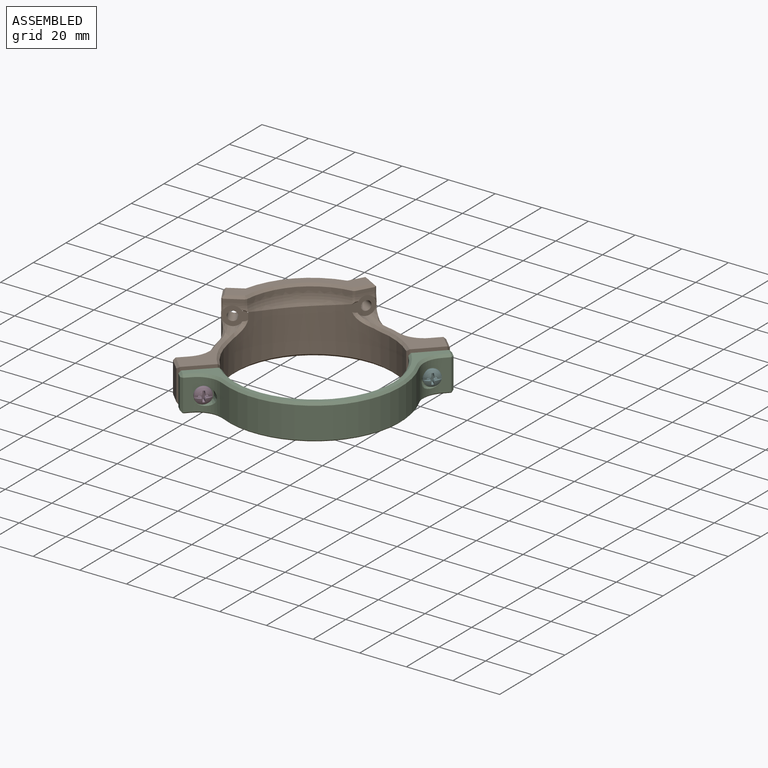
[diagram: assembled view]
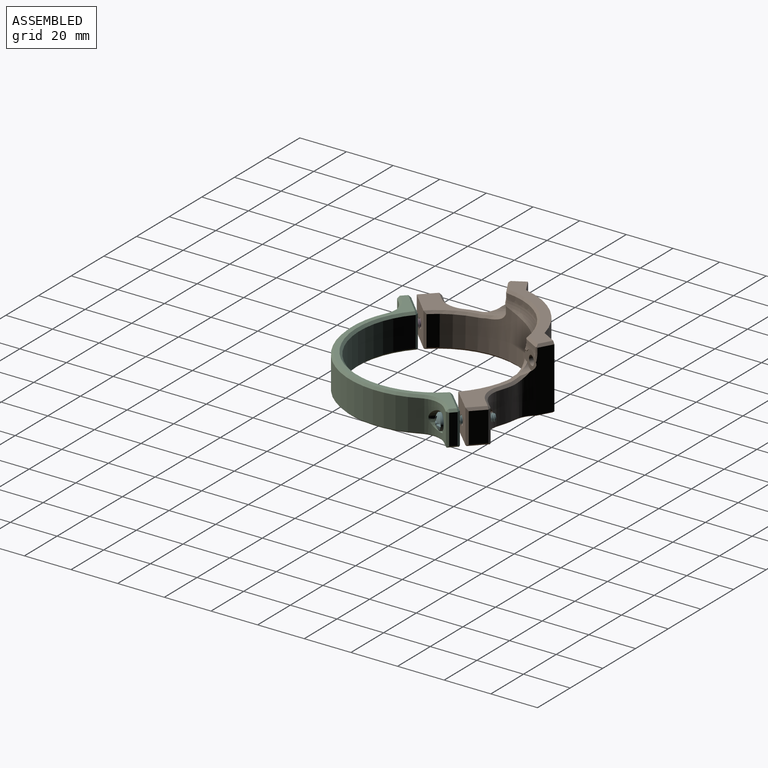
[diagram: assembled view, second angle]
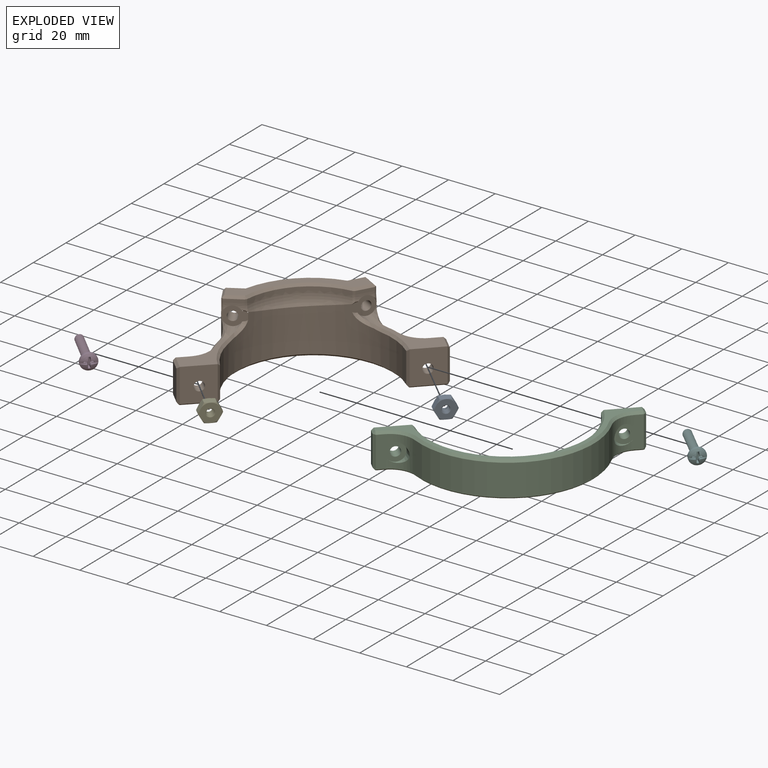
[diagram: exploded view]
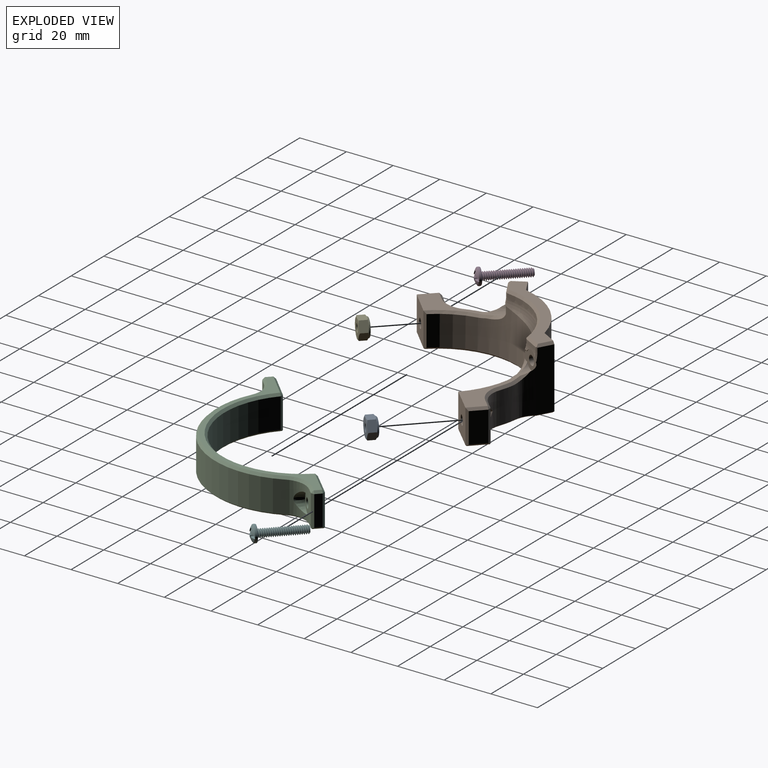
[diagram: exploded view, second angle]
ASSEMBLY  parts=6 mates=4
PART A: 54 faces, bbox 9.5x9.5x4.8 mm
  f0: cylinder r=3.73mm len=7.47mm, axis (0,0,-1), area 1.8mm2, adj f3,f50
  f1: plane 3.55x3.28mm, normal (0,0,-1), area 2.3mm2, adj f2,f17,f18,f19,f20,f21,f22
  f2: cylinder r=1.41mm len=2.82mm, axis (0,0,-1), area 6.4mm2, adj f1,f4
  f3: torus R=3.24mm, axis (0,0,-1), area 15.7mm2, adj f0,f4
  f4: plane 6.48x6.48mm, normal (0,0,1), area 26.8mm2, adj f2,f3
  f5: plane 6.48x6.48mm, normal (0,0,1), area 16mm2, adj f43,f53
  f6: cone r=1.75mm half-angle=65deg, axis (0,0,-1), area 1.4mm2, adj f7,f9,f10,f11
  f7: plane 7.94x7.94mm, normal (0,0,-1), area 39.8mm2, adj f6,f8,f13,f31,f32,f33,f34,f35
  f8: cone r=1.75mm half-angle=65deg, axis (0,0,-1), area 0.6mm2, adj f7,f12
  f9: cone r=1.9mm half-angle=60deg, axis (0,-0.22,0.98), area 3.7mm2, adj f6,f10,f14
  f10: cylinder r=1.47mm len=2.94mm, axis (0,-0.22,0.98), area 1.3mm2, adj f6,f9,f11
  f11: cone r=1.47mm half-angle=60deg, axis (0,0.22,-0.98), area 2mm2, adj f6,f10,f13
  f12: cone r=1.9mm half-angle=60deg, axis (0,-0.22,0.98), area 0mm2, adj f8,f13
  f13: cylinder r=1.75mm len=3.51mm, axis (0,0,-1), area 1.1mm2, adj f7,f11,f12
  f14: cylinder r=1.75mm len=3.51mm, axis (0,0,-1), area 2.3mm2, adj f9,f30
  f15: cylinder r=1.75mm len=3.51mm, axis (0,0,-1), area 2.4mm2, adj f27,f28
  f16: cylinder r=1.75mm len=3.51mm, axis (0,0,-1), area 2.4mm2, adj f24,f25
  f17: cylinder r=1.75mm len=3.51mm, axis (0,0,-1), area 1.9mm2, adj f1,f21,f22
  f18: cylinder r=1.75mm len=1.53mm, axis (0,0,-1), area 0mm2, adj f1,f19
  f19: cone r=1.9mm half-angle=60deg, axis (0,-0.22,0.98), area 0.7mm2, adj f1,f18,f20
  f20: cylinder r=1.47mm len=2.94mm, axis (0,-0.22,0.98), area 0.7mm2, adj f1,f19,f21
  f21: cone r=1.47mm half-angle=60deg, axis (0,0.22,-0.98), area 1.8mm2, adj f1,f17,f20
  f22: cone r=1.9mm half-angle=60deg, axis (0,-0.22,0.98), area 4.7mm2, adj f1,f17,f23
  f23: cylinder r=1.47mm len=2.94mm, axis (0,-0.22,0.98), area 1.8mm2, adj f22,f24
  f24: cone r=1.47mm half-angle=60deg, axis (0,0.22,-0.98), area 3.7mm2, adj f16,f23
  f25: cone r=1.9mm half-angle=60deg, axis (0,-0.22,0.98), area 4.2mm2, adj f16,f26
  f26: cylinder r=1.47mm len=2.94mm, axis (0,-0.22,0.98), area 1.8mm2, adj f25,f27
  f27: cone r=1.47mm half-angle=60deg, axis (0,0.22,-0.98), area 3.7mm2, adj f15,f26
  f28: cone r=1.9mm half-angle=60deg, axis (0,-0.22,0.98), area 4.2mm2, adj f15,f29
  f29: cylinder r=1.47mm len=2.94mm, axis (0,-0.22,0.98), area 1.8mm2, adj f28,f30
  f30: cone r=1.47mm half-angle=60deg, axis (0,0.22,-0.98), area 3.7mm2, adj f14,f29
  f31: cone r=4.58mm half-angle=65deg, axis (0,0,1), area 1.5mm2, adj f7,f45,f46
  f32: cone r=4.58mm half-angle=65deg, axis (0,0,1), area 1.5mm2, adj f7,f44,f45
  f33: cone r=4.58mm half-angle=65deg, axis (0,0,1), area 1.5mm2, adj f7,f44,f49
  f34: cone r=4.58mm half-angle=65deg, axis (0,0,1), area 1.5mm2, adj f7,f48,f49
  f35: cone r=4.58mm half-angle=65deg, axis (0,0,1), area 1.5mm2, adj f7,f47,f48
  f36: cone r=4.58mm half-angle=65deg, axis (0,0,1), area 1.5mm2, adj f7,f46,f47
  f37: cone r=3.97mm half-angle=65deg, axis (0,0,-1), area 1.5mm2, adj f43,f46,f47
  f38: cone r=3.97mm half-angle=65deg, axis (0,0,-1), area 1.5mm2, adj f43,f47,f48
  f39: cone r=3.97mm half-angle=65deg, axis (0,0,-1), area 1.5mm2, adj f43,f48,f49
  f40: cone r=3.97mm half-angle=65deg, axis (0,0,-1), area 1.5mm2, adj f43,f45,f46
  f41: cone r=3.97mm half-angle=65deg, axis (0,0,-1), area 1.5mm2, adj f43,f44,f49
  f42: cone r=3.97mm half-angle=65deg, axis (0,0,-1), area 1.5mm2, adj f43,f44,f45
  f43: torus R=3.24mm, axis (0,0,-1), area 26.6mm2, adj f5,f37,f38,f39,f40,f41,f42
  f44: plane 4.95x4mm, normal (1,0,0), area 15.8mm2, adj f32,f33,f41,f42,f45,f49
  f45: plane 4.33x4mm, normal (0.5,-0.87,0), area 15.8mm2, adj f31,f32,f40,f42,f44,f46
  f46: plane 4.33x4mm, normal (-0.5,-0.87,0), area 15.8mm2, adj f31,f36,f37,f40,f45,f47
  f47: plane 4.95x4mm, normal (-1,0,0), area 15.8mm2, adj f35,f36,f37,f38,f46,f48
  f48: plane 4.33x4mm, normal (-0.5,0.87,0), area 15.8mm2, adj f34,f35,f38,f39,f47,f49
  f49: plane 4.33x4mm, normal (0.5,0.87,0), area 15.8mm2, adj f33,f34,f39,f41,f44,f48
  f50: plane 7.63x7.63mm, normal (0,0,1), area 1.9mm2, adj f0,f51
  f51: torus R=3.24mm, axis (0,0,-1), area 20.5mm2, adj f50,f52
  f52: plane 6.48x6.48mm, normal (0,0,-1), area 16mm2, adj f51,f53
  f53: cylinder r=2.33mm len=4.65mm, axis (0,0,-1), area 2.2mm2, adj f5,f52
PART B: 122 faces, bbox 77.5x77.8x27.8 mm
  f0: bspline ~10.42x7.52mm, area 15.2mm2, adj f2,f3,f21,f22,f38
  f1: cylinder r=2.02mm len=6.4mm, axis (0.71,-0.71,0), area 63.6mm2, adj f7,f29
  f2: cylinder r=33.5mm len=45.69mm, axis (0,0,1), area 789.5mm2, adj f0,f18,f22,f37,f38,f39,f40,f41
  f3: cylinder r=10mm len=5.6mm, axis (0.87,0.5,0), area 7.7mm2, adj f0,f11,f21,f38,f42,f45
  f4: cylinder r=10mm len=6.99mm, axis (0.87,0.5,0), area 12.8mm2, adj f13,f21,f30,f35,f37
  f5: cylinder r=10mm len=20.94mm, axis (0,0,-1), area 125.9mm2, adj f6,f16,f21,f30,f42,f107
  f6: cylinder r=37.5mm len=13.65mm, axis (0,0,1), area 106.5mm2, adj f5,f19,f45,f48,f109
  f7: plane 14.5x9.6mm, normal (0.71,-0.71,0), area 184mm2, adj f1,f11,f39,f40,f43,f117
  f8: plane 13x4.95mm, normal (-0.71,-0.71,0), area 91mm2, adj f43,f44,f46,f47
  f9: plane 13.5x3.49mm, normal (-0.71,0.71,0), area 52.8mm2, adj f19,f23,f24,f25,f28,f47,f51,f113
  f10: plane 76.36x76.07mm, normal (0,0,-1), area 652.1mm2, adj f102,f103,f104,f105,f106,f107,f108,f109
  f11: plane 27.28x15.23mm, normal (0,0,1), area 146.2mm2, adj f3,f7,f39,f46,f48,f50,f51
  f12: cylinder r=29.85mm len=18.21mm, axis (0,0,1), area 30.7mm2, adj f18,f33,f36,f63
  f13: plane 6.68x3.86mm, normal (0.5,-0.87,0), area 11.5mm2, adj f4,f30,f32,f33
  f14: plane 27x6.94mm, normal (-0.5,0.87,0), area 203.1mm2, adj f15,f16,f17,f20,f31,f103
  f15: cylinder r=34.85mm len=27mm, axis (0,0,1), area 516.5mm2, adj f14,f17,f66,f102
  f16: plane 26.15x6.07mm, normal (-0.87,-0.5,0), area 180.6mm2, adj f5,f14,f30,f31,f105
  f17: plane 40.62x40.28mm, normal (0,0,1), area 246.5mm2, adj f14,f15,f31,f32,f36,f65,f66,f81
  f18: torus R=19.85mm, axis (0,0,-1), area 92.9mm2, adj f2,f12,f35,f68
  f19: cylinder r=10mm len=13.5mm, axis (0,0,1), area 98.7mm2, adj f6,f9,f25,f26,f27,f28,f50,f111
  f20: cylinder r=2.02mm len=8.09mm, axis (0.5,-0.87,0), area 89.1mm2, adj f14,f22
  f21: cone r=4mm half-angle=5deg, axis (0.5,-0.87,0), area 35.1mm2, adj f0,f3,f4,f5,f22,f30,f37,f42
  f22: plane 8.48x8.21mm, normal (0.5,-0.87,0), area 43.4mm2, adj f0,f2,f20,f21,f37
  f23: plane 4.65x4.4mm, normal (0.57,0.65,0.5), area 19.2mm2, adj f9,f24,f28,f29
  f24: plane 4.65x4.4mm, normal (0.57,0.65,-0.5), area 19.2mm2, adj f9,f23,f25,f29
  f25: plane 7.05x6.25mm, normal (-0.04,0.04,-1), area 20.8mm2, adj f9,f19,f24,f26,f29
  f26: plane 7.22x5.45mm, normal (-0.65,-0.57,-0.5), area 28.9mm2, adj f19,f25,f27,f29
  f27: plane 7.22x5.45mm, normal (-0.65,-0.57,0.5), area 28.9mm2, adj f19,f26,f28,f29
  f28: plane 7.05x6.25mm, normal (-0.04,0.04,1), area 20.8mm2, adj f9,f19,f23,f27,f29
  f29: plane 8.1x6.61mm, normal (-0.71,0.71,0), area 43.9mm2, adj f1,f23,f24,f25,f26,f27,f28
  f30: bspline ~6.14x1.83mm, area 4mm2, adj f4,f5,f13,f16,f21,f31,f32
  f31: plane 6.26x3.87mm, normal (-0.61,-0.35,0.71), area 9.1mm2, adj f14,f16,f17,f30,f32
  f32: plane 7.11x4.72mm, normal (0.35,-0.61,0.71), area 10.9mm2, adj f13,f17,f30,f31,f34
  f33: plane 1.5x0.78mm, normal (0.84,-0.54,0), area 1.4mm2, adj f12,f13,f34,f35
  f34: plane 1x1mm, normal (0.63,-0.4,0.66), area 0.6mm2, adj f32,f33,f36
  f35: bspline ~3.23x1.09mm, area 2.7mm2, adj f4,f18,f33,f37
  f36: cone r=30.85mm half-angle=45deg, axis (0,0,1), area 29.4mm2, adj f12,f17,f34,f86
  f37: bspline ~5.5x2.57mm, area 1.2mm2, adj f2,f4,f21,f22,f35
  f38: bspline ~4.3x1.66mm, area 4.1mm2, adj f0,f2,f3,f39
  f39: cone r=34.5mm half-angle=45deg, axis (0,0,1), area 27.3mm2, adj f2,f7,f11,f38,f40
  f40: plane 14.7x1.39mm, normal (1,-0.03,0), area 19.1mm2, adj f2,f7,f39,f41,f117
  f41: cone r=33.5mm half-angle=45deg, axis (0,0,-1), area 62mm2, adj f2,f40,f91,f117,f119
  f42: bspline ~5.33x4.22mm, area 7.1mm2, adj f3,f5,f21,f45
  f43: plane 14.75x1.41mm, normal (0,-1,0), area 19.7mm2, adj f7,f8,f44,f46,f117
  f44: plane 6.01x6.01mm, normal (-0.5,-0.5,-0.71), area 9.4mm2, adj f8,f43,f47,f113,f115,f117
  f45: bspline ~1.96x1.31mm, area 2.7mm2, adj f3,f6,f42,f48
  f46: plane 6.36x5.66mm, normal (-0.5,-0.5,0.71), area 10.6mm2, adj f8,f11,f43,f49
  f47: plane 13.75x1.41mm, normal (-1,0,0), area 19mm2, adj f8,f9,f44,f49,f113
  f48: cone r=37.5mm half-angle=45deg, axis (0,0,-1), area 8.2mm2, adj f6,f11,f45,f50
  f49: plane 1.41x1mm, normal (-0.82,0,0.58), area 0.9mm2, adj f46,f47,f51
  f50: cone r=11mm half-angle=45deg, axis (0,0,1), area 16.9mm2, adj f11,f19,f48,f51
  f51: plane 4.2x4.2mm, normal (-0.5,0.5,0.71), area 7mm2, adj f9,f11,f49,f50
  f52: bspline ~10.27x7.05mm, area 15.2mm2, adj f54,f55,f71,f72,f88
  f53: cylinder r=2.02mm len=6.41mm, axis (0.71,-0.7,0), area 63.6mm2, adj f59,f79
  f54: cylinder r=33.5mm len=45.68mm, axis (0,0,1), area 790mm2, adj f2,f52,f68,f72,f87,f88,f89,f90
  f55: cylinder r=10mm len=5.59mm, axis (-0.49,-0.87,0), area 7.8mm2, adj f52,f62,f71,f88,f92,f95
  f56: cylinder r=10mm len=7.03mm, axis (-0.49,-0.87,0), area 12.8mm2, adj f64,f71,f80,f85,f87
  f57: cylinder r=10mm len=20.94mm, axis (0,0,-1), area 125.9mm2, adj f58,f67,f71,f80,f92,f110
  f58: cylinder r=37.5mm len=13.65mm, axis (0,0,1), area 106.5mm2, adj f57,f69,f95,f98,f112
  f59: plane 14.5x9.7mm, normal (0.71,-0.7,0), area 184mm2, adj f53,f62,f89,f90,f93,f120
  f60: plane 13x5mm, normal (0.7,0.71,0), area 91mm2, adj f93,f94,f96,f97
  f61: plane 13.5x3.52mm, normal (-0.71,0.7,0), area 52.8mm2, adj f69,f73,f74,f75,f78,f97,f101,f116
  f62: plane 27.27x15.27mm, normal (0,0,1), area 146.2mm2, adj f55,f59,f89,f96,f98,f100,f101
  f63: cylinder r=29.85mm len=18.12mm, axis (0,0,1), area 30.7mm2, adj f12,f68,f83,f86
  f64: plane 6.72x3.79mm, normal (0.87,-0.49,0), area 11.5mm2, adj f56,f80,f82,f83
  f65: plane 27x6.99mm, normal (-0.87,0.49,0), area 203.1mm2, adj f17,f66,f67,f70,f81,f106
  f66: cylinder r=34.85mm len=27mm, axis (0,0,1), area 516.5mm2, adj f15,f17,f65,f104
  f67: plane 26.01x6.11mm, normal (0.49,0.87,0), area 180.6mm2, adj f57,f65,f80,f81,f108
  f68: torus R=19.85mm, axis (0,0,-1), area 92.3mm2, adj f18,f54,f63,f85
  f69: cylinder r=10mm len=13.5mm, axis (0,0,1), area 98.7mm2, adj f58,f61,f75,f76,f77,f78,f100,f114
  f70: cylinder r=2.02mm len=8.09mm, axis (0.87,-0.49,0), area 89.1mm2, adj f65,f72
  f71: cone r=4mm half-angle=5deg, axis (0.87,-0.49,0), area 35.1mm2, adj f52,f55,f56,f57,f72,f80,f87,f92
  f72: plane 8.49x8.21mm, normal (0.87,-0.49,0), area 43.4mm2, adj f52,f54,f70,f71,f87
  f73: plane 4.64x4.41mm, normal (-0.64,-0.58,0.5), area 19.2mm2, adj f61,f74,f78,f79
  f74: plane 4.64x4.41mm, normal (-0.64,-0.58,-0.5), area 19.2mm2, adj f61,f73,f75,f79
  f75: plane 7.05x6.25mm, normal (-0.04,0.04,-1), area 20.8mm2, adj f61,f69,f74,f76,f79
  f76: plane 7.25x5.42mm, normal (0.57,0.65,-0.5), area 28.9mm2, adj f69,f75,f77,f79
  f77: plane 7.25x5.42mm, normal (0.57,0.65,0.5), area 28.9mm2, adj f69,f76,f78,f79
  f78: plane 7.05x6.25mm, normal (-0.04,0.04,1), area 20.8mm2, adj f61,f69,f73,f77,f79
  f79: plane 8.1x6.68mm, normal (-0.71,0.7,0), area 43.9mm2, adj f53,f73,f74,f75,f76,f77,f78
  f80: bspline ~5.95x1.73mm, area 4mm2, adj f56,f57,f64,f67,f71,f81,f82
  f81: plane 6.29x3.82mm, normal (0.35,0.62,0.71), area 9.1mm2, adj f17,f65,f67,f80,f82
  f82: plane 7.15x4.65mm, normal (0.62,-0.35,0.71), area 10.9mm2, adj f17,f64,f80,f81,f84
  f83: plane 1.5x0.77mm, normal (0.55,-0.84,0), area 1.4mm2, adj f63,f64,f84,f85
  f84: plane 1x1mm, normal (0.41,-0.63,0.66), area 0.6mm2, adj f82,f83,f86
  f85: bspline ~4.24x1.4mm, area 2.7mm2, adj f56,f68,f83,f87
  f86: cone r=30.85mm half-angle=45deg, axis (0,0,1), area 29.4mm2, adj f17,f36,f63,f84
  f87: bspline ~1.93x1.84mm, area 1.2mm2, adj f54,f56,f71,f72,f85
  f88: bspline ~3.17x1.35mm, area 4.1mm2, adj f52,f54,f55,f89
  f89: cone r=34.5mm half-angle=45deg, axis (0,0,1), area 27.3mm2, adj f54,f59,f62,f88,f90
  f90: plane 14.7x1.39mm, normal (0.04,-1,0), area 19.1mm2, adj f54,f59,f89,f91,f120
  f91: cone r=33.5mm half-angle=45deg, axis (0,0,-1), area 62mm2, adj f41,f54,f90,f120,f121
  f92: bspline ~5.35x4.22mm, area 7.1mm2, adj f55,f57,f71,f95
  f93: plane 14.75x1.41mm, normal (1,0.01,0), area 19.7mm2, adj f59,f60,f94,f96,f120
  f94: plane 6.07x5.96mm, normal (0.49,0.51,-0.71), area 9.4mm2, adj f60,f93,f97,f116,f118,f120
  f95: bspline ~1.97x1.29mm, area 2.7mm2, adj f55,f58,f92,f98
  f96: plane 6.31x5.72mm, normal (0.49,0.51,0.71), area 10.6mm2, adj f60,f62,f93,f99
  f97: plane 13.75x1.41mm, normal (-0.01,1,0), area 19mm2, adj f60,f61,f94,f99,f116
  f98: cone r=37.5mm half-angle=45deg, axis (0,0,-1), area 8.2mm2, adj f58,f62,f95,f100
  f99: plane 1.41x1mm, normal (-0.01,0.82,0.58), area 0.9mm2, adj f96,f97,f101
  f100: cone r=11mm half-angle=45deg, axis (0,0,1), area 16.9mm2, adj f62,f69,f98,f101
  f101: plane 4.22x4.17mm, normal (-0.51,0.49,0.71), area 7mm2, adj f61,f62,f99,f100
  f102: cone r=34.35mm half-angle=45deg, axis (0,0,1), area 13.5mm2, adj f10,f15,f103,f104
  f103: plane 7.39x4.19mm, normal (-0.35,0.61,-0.71), area 5.6mm2, adj f10,f14,f102,f105
  f104: cone r=34.85mm half-angle=45deg, axis (0,0,1), area 13.5mm2, adj f10,f66,f102,f106
  f105: plane 6.06x3.88mm, normal (-0.61,-0.35,-0.71), area 4.7mm2, adj f10,f16,f103,f107
  f106: plane 7.42x4.13mm, normal (-0.62,0.35,-0.71), area 5.6mm2, adj f10,f65,f104,f108
  f107: cone r=10.5mm half-angle=45deg, axis (0,0,-1), area 5.8mm2, adj f5,f10,f105,f109
  f108: plane 6.1x3.82mm, normal (0.35,0.62,-0.71), area 4.7mm2, adj f10,f67,f106,f110
  f109: cone r=37mm half-angle=45deg, axis (0,0,1), area 5.5mm2, adj f6,f10,f107,f111
  f110: cone r=10mm half-angle=45deg, axis (0,0,-1), area 5.8mm2, adj f10,f57,f108,f112
  f111: cone r=10.5mm half-angle=45deg, axis (0,0,-1), area 8.2mm2, adj f10,f19,f109,f113
  f112: cone r=37.5mm half-angle=45deg, axis (0,0,1), area 5.5mm2, adj f10,f58,f110,f114
  f113: plane 3.84x3.84mm, normal (-0.5,0.5,-0.71), area 3.6mm2, adj f9,f10,f44,f47,f111,f115
  f114: cone r=10mm half-angle=45deg, axis (0,0,-1), area 8.2mm2, adj f10,f69,f112,f116
  f115: plane 6.01x6.01mm, normal (-0.27,-0.27,-0.92), area 3.1mm2, adj f10,f44,f113,f117
  f116: plane 3.88x3.81mm, normal (-0.51,0.49,-0.71), area 3.6mm2, adj f10,f61,f94,f97,f114,f118
  f117: plane 9.96x9.93mm, normal (0.5,-0.5,-0.71), area 9.7mm2, adj f7,f10,f40,f41,f43,f44,f115,f119
  f118: plane 6.07x5.95mm, normal (0.27,0.27,-0.92), area 3.1mm2, adj f10,f94,f116,f120
  f119: cone r=34.71mm half-angle=67.5deg, axis (0,0,-1), area 20.1mm2, adj f10,f41,f117,f121
  f120: plane 10.07x9.83mm, normal (0.51,-0.49,-0.71), area 9.7mm2, adj f10,f59,f90,f91,f93,f94,f118,f121
  f121: cone r=34.35mm half-angle=67.5deg, axis (0,0,-1), area 20.1mm2, adj f10,f91,f119,f120
PART C: 62 faces, bbox 71.2x71.9x15 mm
  f0: cylinder r=37.5mm len=42.55mm, axis (0,0,1), area 621.3mm2, adj f7,f25,f26,f50
  f1: plane 13.5x2.33mm, normal (0.71,-0.71,0), area 44.5mm2, adj f7,f20,f23,f54
  f2: plane 13x2.12mm, normal (-0.71,-0.71,0), area 39mm2, adj f13,f17,f20,f21
  f3: plane 13.5x9.6mm, normal (-0.71,0.71,0), area 170.4mm2, adj f8,f12,f13,f14,f58
  f4: cylinder r=33.5mm len=45.95mm, axis (0,0,1), area 658.5mm2, adj f12,f16,f19,f30
  f5: plane 70.53x69.84mm, normal (0,0,-1), area 362.8mm2, adj f50,f51,f52,f53,f54,f55,f56,f57
  f6: plane 70.12x69.42mm, normal (0,0,1), area 311.2mm2, adj f14,f19,f21,f23,f24,f25,f38,f43
  f7: cylinder r=10mm len=13.5mm, axis (0,0,1), area 108.3mm2, adj f0,f1,f9,f10,f24,f52
  f8: cylinder r=2.02mm len=6.4mm, axis (0.71,-0.71,0), area 63.6mm2, adj f3,f11
  f9: plane 5.11x0.02mm, normal (0.77,0.64,0), area 0.1mm2, adj f7,f10,f11
  f10: cone r=4mm half-angle=5deg, axis (0.71,-0.71,0), area 34.9mm2, adj f7,f9,f11
  f11: plane 8x5.01mm, normal (0.71,-0.71,0), area 34.2mm2, adj f8,f9,f10
  f12: plane 13.74x1.38mm, normal (-0.03,1,0), area 18.4mm2, adj f3,f4,f15,f16,f58
  f13: plane 13.75x1.41mm, normal (-1,0,0), area 19mm2, adj f2,f3,f17,f18,f58
  f14: plane 10.31x10.31mm, normal (-0.5,0.5,0.71), area 19.2mm2, adj f3,f6,f15,f18
  f15: plane 1.37x1mm, normal (-0.02,0.81,0.59), area 0.8mm2, adj f12,f14,f19
  f16: cone r=33.5mm half-angle=45deg, axis (0,0,-1), area 62.4mm2, adj f4,f12,f40,f58,f60
  f17: plane 3.18x3.18mm, normal (-0.5,-0.5,-0.71), area 4.6mm2, adj f2,f13,f20,f54,f56,f58
  f18: plane 1.41x1mm, normal (-0.82,0,0.58), area 0.9mm2, adj f13,f14,f21
  f19: cone r=34.5mm half-angle=45deg, axis (0,0,1), area 72.7mm2, adj f4,f6,f15,f43
  f20: plane 13.75x1.41mm, normal (0,-1,0), area 19mm2, adj f1,f2,f17,f22,f54
  f21: plane 2.83x2.83mm, normal (-0.5,-0.5,0.71), area 4.2mm2, adj f2,f6,f18,f22
  f22: plane 1.41x1mm, normal (0,-0.82,0.58), area 0.9mm2, adj f20,f21,f23
  f23: plane 3.04x3.04mm, normal (0.5,-0.5,0.71), area 4.7mm2, adj f1,f6,f22,f24
  f24: cone r=11mm half-angle=45deg, axis (0,0,1), area 18.2mm2, adj f6,f7,f23,f25
  f25: cone r=37.5mm half-angle=45deg, axis (0,0,-1), area 64.2mm2, adj f0,f6,f24,f49
  f26: cylinder r=37.5mm len=42.63mm, axis (0,0,1), area 621.3mm2, adj f0,f31,f49,f51
  f27: plane 13.5x2.35mm, normal (0.71,-0.7,0), area 44.5mm2, adj f31,f44,f47,f55
  f28: plane 13x2.14mm, normal (0.7,0.71,0), area 39mm2, adj f37,f41,f44,f45
  f29: plane 13.5x9.7mm, normal (-0.71,0.7,0), area 170.4mm2, adj f32,f36,f37,f38,f59
  f30: cylinder r=33.5mm len=45.96mm, axis (0,0,1), area 658.5mm2, adj f4,f36,f40,f43
  f31: cylinder r=10mm len=13.5mm, axis (0,0,1), area 108.3mm2, adj f26,f27,f33,f34,f48,f53
  f32: cylinder r=2.02mm len=6.41mm, axis (0.71,-0.7,0), area 63.6mm2, adj f29,f35
  f33: plane 5.11x0.02mm, normal (-0.63,-0.77,0), area 0.1mm2, adj f31,f34,f35
  f34: cone r=4mm half-angle=5deg, axis (0.71,-0.7,0), area 34.9mm2, adj f31,f33,f35
  f35: plane 8x5.06mm, normal (0.71,-0.7,0), area 34.2mm2, adj f32,f33,f34
  f36: plane 13.74x1.38mm, normal (-1,0.02,0), area 18.4mm2, adj f29,f30,f39,f40,f59
  f37: plane 13.75x1.41mm, normal (-0.01,1,0), area 19mm2, adj f28,f29,f41,f42,f59
  f38: plane 10.4x10.21mm, normal (-0.51,0.49,0.71), area 19.2mm2, adj f6,f29,f39,f42
  f39: plane 1.37x1mm, normal (-0.81,0.01,0.59), area 0.8mm2, adj f36,f38,f43
  f40: cone r=33.5mm half-angle=45deg, axis (0,0,-1), area 62.4mm2, adj f16,f30,f36,f59,f61
  f41: plane 3.22x3.16mm, normal (0.49,0.51,-0.71), area 4.6mm2, adj f28,f37,f44,f55,f57,f59
  f42: plane 1.41x1mm, normal (-0.01,0.82,0.58), area 0.9mm2, adj f37,f38,f45
  f43: cone r=34.5mm half-angle=45deg, axis (0,0,1), area 72.7mm2, adj f6,f19,f30,f39
  f44: plane 13.75x1.41mm, normal (1,0.01,0), area 19mm2, adj f27,f28,f41,f46,f55
  f45: plane 2.84x2.81mm, normal (0.49,0.51,0.71), area 4.2mm2, adj f6,f28,f42,f46
  f46: plane 1.41x1mm, normal (0.82,0.01,0.58), area 0.9mm2, adj f44,f45,f47
  f47: plane 3.05x3.02mm, normal (0.51,-0.49,0.71), area 4.7mm2, adj f6,f27,f46,f48
  f48: cone r=11mm half-angle=45deg, axis (0,0,1), area 18.2mm2, adj f6,f31,f47,f49
  f49: cone r=37.5mm half-angle=45deg, axis (0,0,-1), area 64.2mm2, adj f6,f25,f26,f48
  f50: cone r=37mm half-angle=45deg, axis (0,0,1), area 32.3mm2, adj f0,f5,f51,f52
  f51: cone r=37.5mm half-angle=45deg, axis (0,0,1), area 32.3mm2, adj f5,f26,f50,f53
  f52: cone r=10.5mm half-angle=45deg, axis (0,0,-1), area 8.9mm2, adj f5,f7,f50,f54
  f53: cone r=10mm half-angle=45deg, axis (0,0,-1), area 8.9mm2, adj f5,f31,f51,f55
  f54: plane 2.68x2.68mm, normal (0.5,-0.5,-0.71), area 2.4mm2, adj f1,f5,f17,f20,f52,f56
  f55: plane 2.71x2.66mm, normal (0.51,-0.49,-0.71), area 2.4mm2, adj f5,f27,f41,f44,f53,f57
  f56: plane 3.18x3.18mm, normal (-0.27,-0.27,-0.92), area 1.6mm2, adj f5,f17,f54,f58
  f57: plane 3.21x3.15mm, normal (0.27,0.27,-0.92), area 1.6mm2, adj f5,f41,f55,f59
  f58: plane 9.96x9.93mm, normal (-0.5,0.5,-0.71), area 9.7mm2, adj f3,f5,f12,f13,f16,f17,f56,f60
  f59: plane 10.03x9.86mm, normal (-0.51,0.49,-0.71), area 9.7mm2, adj f5,f29,f36,f37,f40,f41,f57,f61
  f60: cone r=34.71mm half-angle=67.5deg, axis (0,0,-1), area 20.2mm2, adj f5,f16,f58,f61
  f61: cone r=34.35mm half-angle=67.5deg, axis (0,0,-1), area 20.2mm2, adj f5,f40,f59,f60
PART D: 87 faces, bbox 7.7x21.9x7.7 mm
  f0: sphere r=5.39mm, area 12.4mm2, adj f1,f2,f61,f62,f63,f64,f79,f80
  f1: plane 2.02x0.61mm, normal (-0.38,-0.09,-0.92), area 0.6mm2, adj f0,f64,f65,f67,f85,f86
  f2: plane 2.02x0.61mm, normal (0.38,-0.09,-0.92), area 0.6mm2, adj f0,f67,f78,f79,f81,f82
  f3: cylinder r=1.75mm len=3.51mm, axis (0,-1,0), area 0.5mm2, adj f27,f28,f51,f52
  f4: cylinder r=1.75mm len=3.51mm, axis (0,-1,0), area 0.5mm2, adj f28,f29,f51,f52
  f5: cylinder r=1.75mm len=3.51mm, axis (0,-1,0), area 0.5mm2, adj f29,f30,f51,f52
  f6: cylinder r=1.75mm len=3.51mm, axis (0,-1,0), area 0.5mm2, adj f30,f31,f51,f52
  f7: cylinder r=1.75mm len=3.51mm, axis (0,-1,0), area 0.5mm2, adj f31,f32,f51,f52
  f8: cylinder r=1.75mm len=3.51mm, axis (0,-1,0), area 0.5mm2, adj f32,f33,f51,f52
  f9: cylinder r=1.75mm len=3.51mm, axis (0,-1,0), area 0.5mm2, adj f33,f34,f51,f52
  f10: cylinder r=1.75mm len=3.51mm, axis (0,-1,0), area 0.5mm2, adj f34,f35,f51,f52
  f11: cylinder r=1.75mm len=3.51mm, axis (0,-1,0), area 0.5mm2, adj f35,f36,f51,f52
  f12: cylinder r=1.75mm len=3.51mm, axis (0,-1,0), area 0.5mm2, adj f36,f37,f51,f52
  f13: cylinder r=1.75mm len=3.51mm, axis (0,-1,0), area 0.5mm2, adj f37,f38,f51,f52
  f14: cylinder r=1.75mm len=3.51mm, axis (0,-1,0), area 0.5mm2, adj f38,f39,f51,f52
  f15: cylinder r=1.75mm len=3.51mm, axis (0,-1,0), area 0.5mm2, adj f39,f40,f51,f52
  f16: cylinder r=1.75mm len=3.51mm, axis (0,-1,0), area 0.5mm2, adj f40,f41,f51,f52
  f17: cylinder r=1.75mm len=3.51mm, axis (0,-1,0), area 0.5mm2, adj f41,f42,f51,f52
  f18: cylinder r=1.75mm len=3.51mm, axis (0,-1,0), area 0.5mm2, adj f42,f43,f51,f52
  f19: cylinder r=1.75mm len=3.51mm, axis (0,-1,0), area 0.5mm2, adj f43,f44,f51,f52
  f20: cylinder r=1.75mm len=3.51mm, axis (0,-1,0), area 0.5mm2, adj f44,f45,f51,f52
  f21: cylinder r=1.75mm len=3.51mm, axis (0,-1,0), area 0.5mm2, adj f45,f46,f51,f52
  f22: cylinder r=1.75mm len=3.51mm, axis (0,-1,0), area 0.5mm2, adj f46,f47,f51,f52
  f23: cylinder r=1.75mm len=3.51mm, axis (0,-1,0), area 0.5mm2, adj f47,f48,f51,f52
  f24: cylinder r=1.75mm len=3.51mm, axis (0,-1,0), area 0.5mm2, adj f48,f49,f51,f52
  f25: cylinder r=1.75mm len=3.51mm, axis (0,-1,0), area 0.5mm2, adj f49,f51,f52,f53
  f26: cylinder r=1.75mm len=0.68mm, axis (0,-1,0), area 0mm2, adj f27,f50,f52
  f27: cylinder r=1.75mm len=3.51mm, axis (0,-1,0), area 0.5mm2, adj f3,f26,f50,f51,f52
  f28: cylinder r=1.75mm len=3.51mm, axis (0,-1,0), area 0.5mm2, adj f3,f4,f51,f52
  f29: cylinder r=1.75mm len=3.51mm, axis (0,-1,0), area 0.5mm2, adj f4,f5,f51,f52
  f30: cylinder r=1.75mm len=3.51mm, axis (0,-1,0), area 0.5mm2, adj f5,f6,f51,f52
  f31: cylinder r=1.75mm len=3.51mm, axis (0,-1,0), area 0.5mm2, adj f6,f7,f51,f52
  f32: cylinder r=1.75mm len=3.51mm, axis (0,-1,0), area 0.5mm2, adj f7,f8,f51,f52
  f33: cylinder r=1.75mm len=3.51mm, axis (0,-1,0), area 0.5mm2, adj f8,f9,f51,f52
  f34: cylinder r=1.75mm len=3.51mm, axis (0,-1,0), area 0.5mm2, adj f9,f10,f51,f52
  f35: cylinder r=1.75mm len=3.51mm, axis (0,-1,0), area 0.5mm2, adj f10,f11,f51,f52
  f36: cylinder r=1.75mm len=3.51mm, axis (0,-1,0), area 0.5mm2, adj f11,f12,f51,f52
  f37: cylinder r=1.75mm len=3.51mm, axis (0,-1,0), area 0.5mm2, adj f12,f13,f51,f52
  f38: cylinder r=1.75mm len=3.51mm, axis (0,-1,0), area 0.5mm2, adj f13,f14,f51,f52
  f39: cylinder r=1.75mm len=3.51mm, axis (0,-1,0), area 0.5mm2, adj f14,f15,f51,f52
  f40: cylinder r=1.75mm len=3.51mm, axis (0,-1,0), area 0.5mm2, adj f15,f16,f51,f52
  f41: cylinder r=1.75mm len=3.51mm, axis (0,-1,0), area 0.5mm2, adj f16,f17,f51,f52
  f42: cylinder r=1.75mm len=3.51mm, axis (0,-1,0), area 0.5mm2, adj f17,f18,f51,f52
  f43: cylinder r=1.75mm len=3.51mm, axis (0,-1,0), area 0.5mm2, adj f18,f19,f51,f52
  f44: cylinder r=1.75mm len=3.51mm, axis (0,-1,0), area 0.5mm2, adj f19,f20,f51,f52
  f45: cylinder r=1.75mm len=3.51mm, axis (0,-1,0), area 0.5mm2, adj f20,f21,f51,f52
  f46: cylinder r=1.75mm len=3.51mm, axis (0,-1,0), area 0.5mm2, adj f21,f22,f51,f52
  f47: cylinder r=1.75mm len=3.51mm, axis (0,-1,0), area 0.5mm2, adj f22,f23,f51,f52
  f48: cylinder r=1.75mm len=3.51mm, axis (0,-1,0), area 0.5mm2, adj f23,f24,f51,f52
  f49: cylinder r=1.75mm len=3.51mm, axis (0,-1,0), area 0.5mm2, adj f24,f25,f51,f52
  f50: plane 6.27x6.27mm, normal (0,1,0), area 20.9mm2, adj f26,f27,f51,f52,f56,f58
  f51: bspline ~19.35x4.05mm, area 131.8mm2, adj f3,f4,f5,f6,f7,f8,f9,f10
  f52: bspline ~19.48x4.05mm, area 132.6mm2, adj f3,f4,f5,f6,f7,f8,f9,f10
  f53: cylinder r=1.75mm len=3.25mm, axis (0,-1,0), area 0.4mm2, adj f25,f51,f52,f57
  f54: bspline ~2.8x1.46mm, area 0.5mm2, adj f51,f56,f57
  f55: plane 2.47x2.47mm, normal (0,1,0), area 4.8mm2, adj f56,f57
  f56: cylinder r=1.24mm len=19.05mm, axis (0,-1,0), area 22.6mm2, adj f50,f51,f52,f54,f55
  f57: cone r=4.41mm half-angle=45deg, axis (0,-1,0), area 3.3mm2, adj f51,f52,f53,f54,f55
  f58: torus R=2.99mm, axis (0,-1,0), area 14.3mm2, adj f50,f59
  f59: cylinder r=3.43mm len=6.86mm, axis (0,1,0), area 12.4mm2, adj f58,f61
  f60: sphere r=5.39mm, area 12.4mm2, adj f61,f69,f70,f71,f72,f73,f74,f75
  f61: torus R=2.99mm, axis (0,-1,0), area 7.9mm2, adj f0,f59,f60,f81,f82,f83,f84,f85
  f62: cone r=2.38mm half-angle=15deg, axis (0,-1,0), area 1.3mm2, adj f0,f63,f67,f80
  f63: plane 2.03x1.14mm, normal (-1,-0.09,0), area 1.5mm2, adj f0,f62,f64,f67
  f64: plane 2.07x0.69mm, normal (-0.92,-0.09,-0.38), area 1.2mm2, adj f0,f1,f63,f67
  f65: plane 0.83x0.75mm, normal (0,-0.09,-1), area 0.5mm2, adj f1,f66,f67,f86
  f66: cone r=2.38mm half-angle=15deg, axis (0,-1,0), area 0.6mm2, adj f65,f67,f68,f86
  f67: plane 3.64x3.64mm, normal (0,-1,0), area 5.1mm2, adj f1,f2,f62,f63,f64,f65,f66,f68
  f68: plane 0.83x0.75mm, normal (0,-0.09,1), area 0.5mm2, adj f66,f67,f69,f86
  f69: plane 2.02x0.61mm, normal (-0.38,-0.09,0.92), area 0.6mm2, adj f60,f67,f68,f70,f84,f86
  f70: plane 2.07x0.69mm, normal (-0.92,-0.09,0.38), area 1.2mm2, adj f60,f67,f69,f71
  f71: plane 2.03x1.14mm, normal (-1,-0.09,0), area 1.5mm2, adj f60,f67,f70,f72
  f72: cone r=2.38mm half-angle=15deg, axis (0,-1,0), area 1.3mm2, adj f60,f67,f71,f73
  f73: plane 2.03x1.14mm, normal (1,-0.09,0), area 1.5mm2, adj f60,f67,f72,f74
  f74: plane 2.07x0.69mm, normal (0.92,-0.09,0.38), area 1.2mm2, adj f60,f67,f73,f75
  f75: plane 2.02x0.61mm, normal (0.38,-0.09,0.92), area 0.6mm2, adj f60,f67,f74,f76,f81,f83
  f76: plane 0.83x0.75mm, normal (0,-0.09,1), area 0.5mm2, adj f67,f75,f77,f81
  f77: cone r=2.38mm half-angle=15deg, axis (0,-1,0), area 0.6mm2, adj f67,f76,f78,f81
  f78: plane 0.83x0.75mm, normal (0,-0.09,-1), area 0.5mm2, adj f2,f67,f77,f81
  f79: plane 2.07x0.69mm, normal (0.92,-0.09,-0.38), area 1.2mm2, adj f0,f2,f67,f80
  f80: plane 2.03x1.14mm, normal (1,-0.09,0), area 1.5mm2, adj f0,f62,f67,f79
  f81: plane 2.78x1.22mm, normal (0,-1,0), area 2.2mm2, adj f2,f61,f75,f76,f77,f78,f82,f83
  f82: plane 2.73x1.24mm, normal (0,0,-1), area 2.1mm2, adj f0,f2,f61,f81
  f83: plane 2.73x1.24mm, normal (0,0,1), area 2.1mm2, adj f60,f61,f75,f81
  f84: plane 2.73x1.24mm, normal (0,0,1), area 2.1mm2, adj f60,f61,f69,f86
  f85: plane 2.73x1.24mm, normal (0,0,-1), area 2.1mm2, adj f0,f1,f61,f86
  f86: plane 2.78x1.22mm, normal (0,-1,0), area 2.2mm2, adj f1,f61,f65,f66,f68,f69,f84,f85
PART E: same geometry as A
PART F: same geometry as D
PLACE A rot(axis=(-0.35,-0.87,-0.35),98.2deg) t=(31.32,75.42,-0.5)mm
PLACE B at identity
PLACE C at identity
PLACE D rot(axis=(0,0,1),45deg) t=(-31.03,22.42,-0.41)mm
PLACE E rot(axis=(-0.68,0.28,0.68),148.6deg) t=(-26.05,17.44,-0.5)mm
PLACE F rot(axis=(0,0,1),45.6deg) t=(26.29,80.35,-0.41)mm
MATE slider A.f6 <-> B.f53  axis (0.71,-0.7,0) through (31.32,75.42,-0.5)mm
MATE slider E.f6 <-> B.f1  axis (0.71,-0.71,0) through (-26.05,17.44,-0.5)mm
MATE slider D.f50 <-> C.f10  axis (-0.71,0.71,0) through (-17.56,8.95,-0.5)mm
MATE slider F.f50 <-> C.f32  axis (-0.71,0.7,0) through (39.9,67.03,-0.5)mm
